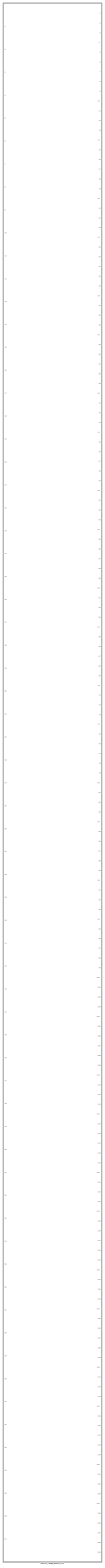
[diagram: root canvas - part 1/1, most of the canvas]
MODEL slx_ce8b786b4540
KIND library
CONFIG AbsTol = auto
CONFIG FixedStep = auto
CONFIG MaxStep = auto
CONFIG MinStep = auto
CONFIG RelTol = 1e-3
CONFIG SampleTimeConstraint = Unconstrained
CONFIG Solver = VariableStepAuto
CONFIG SolverMode = Auto
CONFIG SolverName = VariableStepAuto
CONFIG StartTime = 0.0
CONFIG StopTime = 10.0
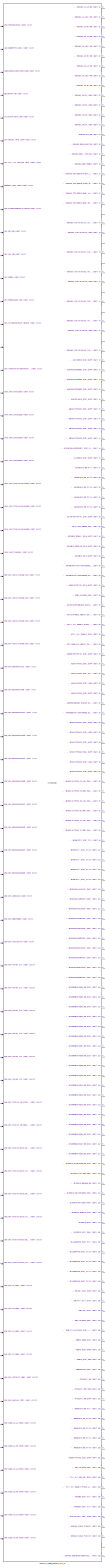
[diagram: pneAux_rebuild_generic_std - part 1/17, center side, full height]
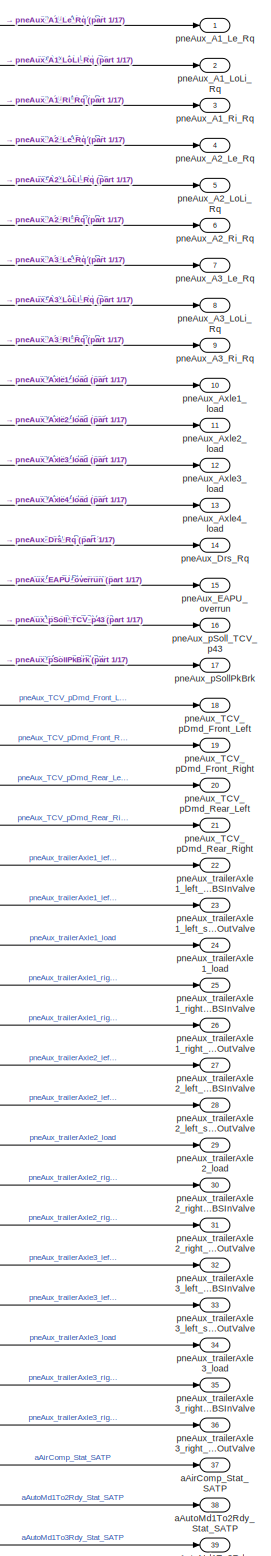
[diagram: pneAux_rebuild_generic_std - part 2/17, top right region]
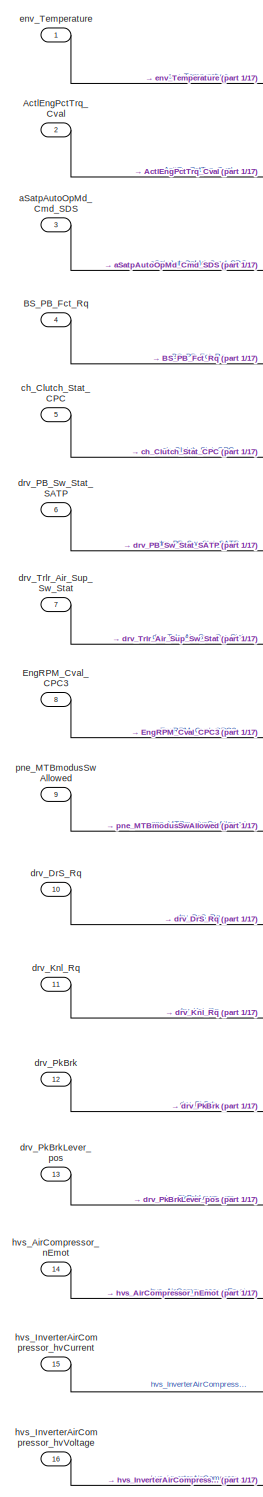
[diagram: pneAux_rebuild_generic_std - part 3/17, top left region]
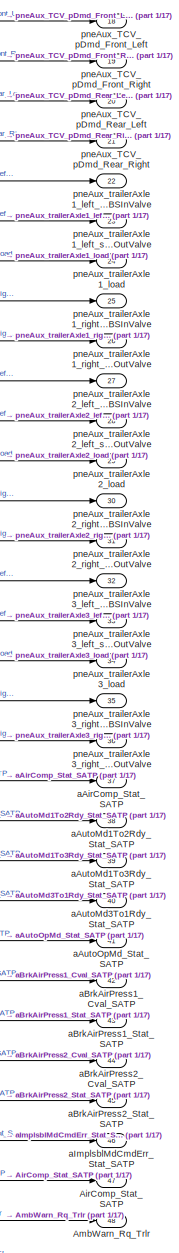
[diagram: pneAux_rebuild_generic_std - part 4/17, top right region]
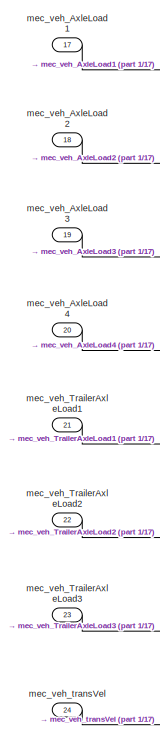
[diagram: pneAux_rebuild_generic_std - part 5/17, top left region]
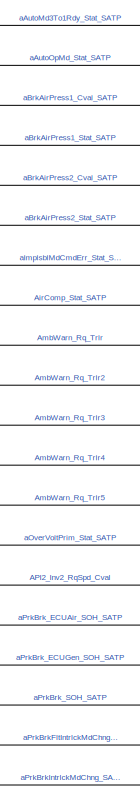
[diagram: pneAux_rebuild_generic_std - part 6/17, top right region]
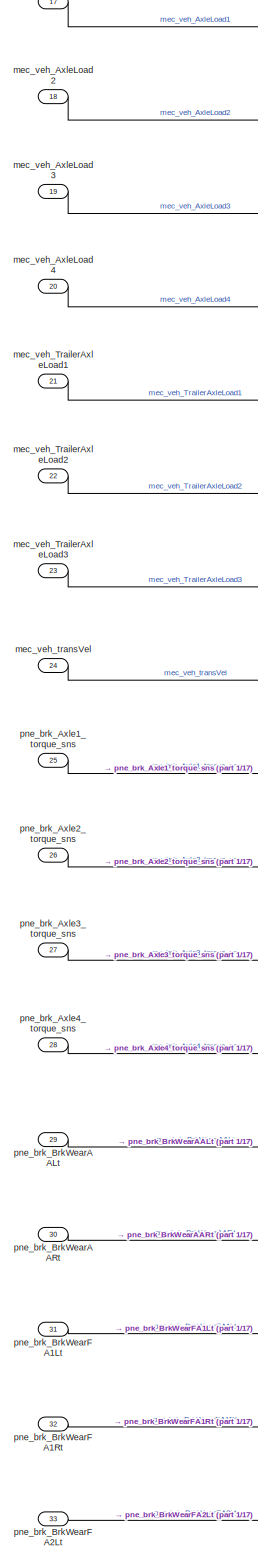
[diagram: pneAux_rebuild_generic_std - part 7/17, middle left region]
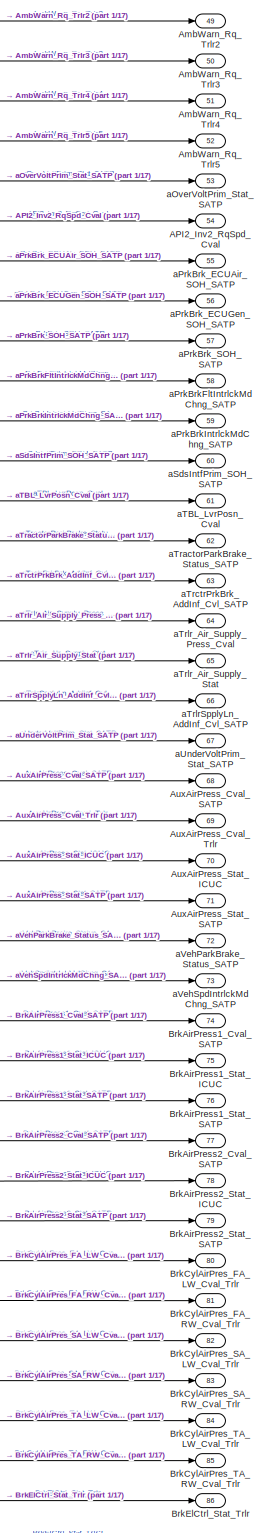
[diagram: pneAux_rebuild_generic_std - part 8/17, middle right region]
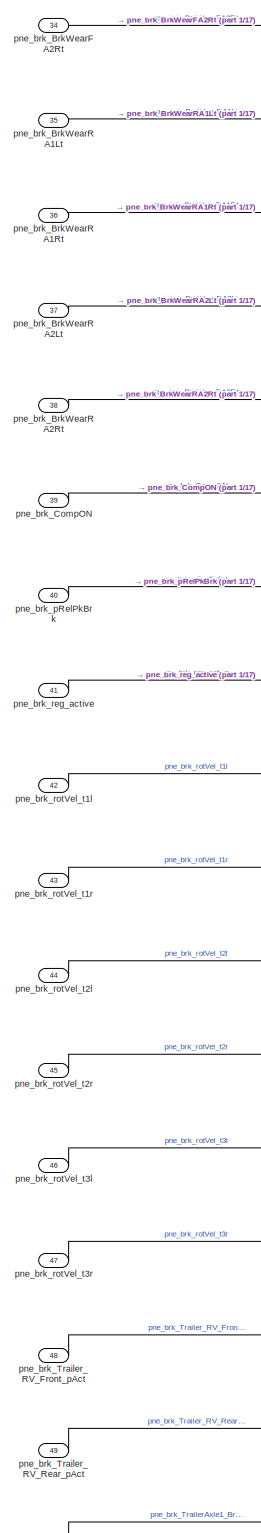
[diagram: pneAux_rebuild_generic_std - part 9/17, middle left region]
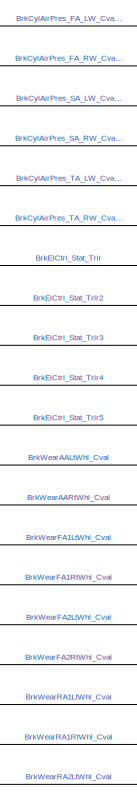
[diagram: pneAux_rebuild_generic_std - part 10/17, middle right region]
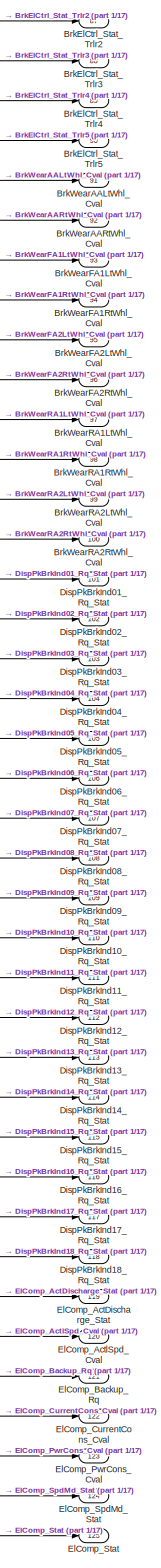
[diagram: pneAux_rebuild_generic_std - part 11/17, middle right region]
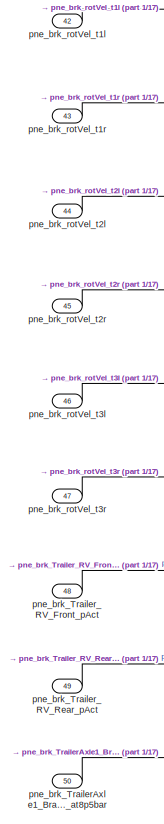
[diagram: pneAux_rebuild_generic_std - part 12/17, bottom left region]
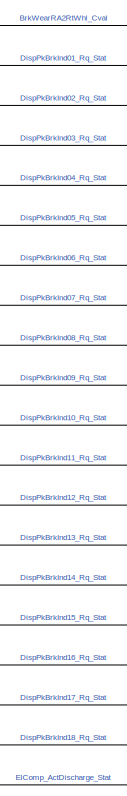
[diagram: pneAux_rebuild_generic_std - part 13/17, bottom right region]
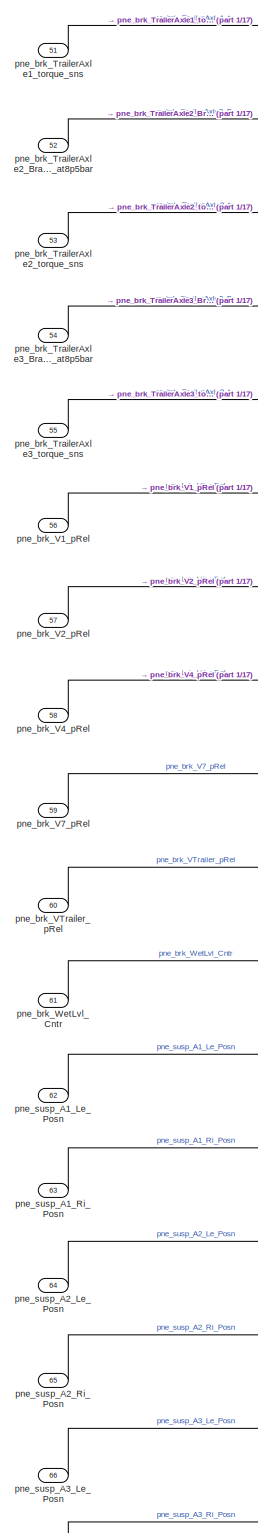
[diagram: pneAux_rebuild_generic_std - part 14/17, bottom left region]
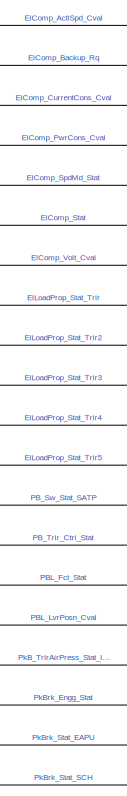
[diagram: pneAux_rebuild_generic_std - part 15/17, bottom right region]
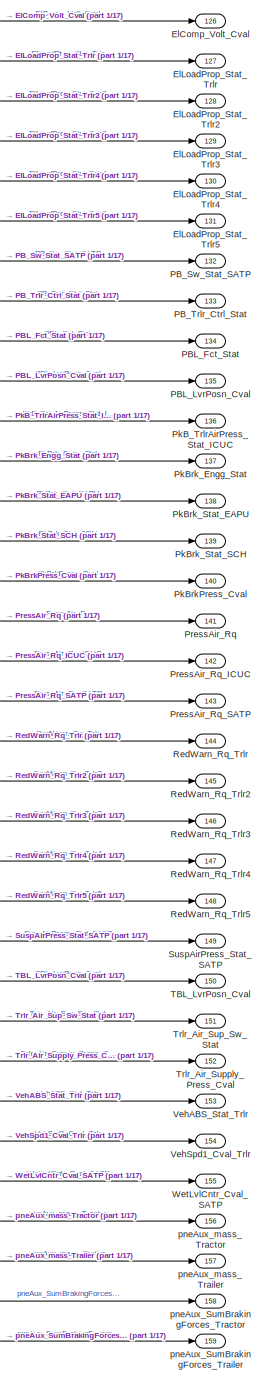
[diagram: pneAux_rebuild_generic_std - part 16/17, bottom right region]
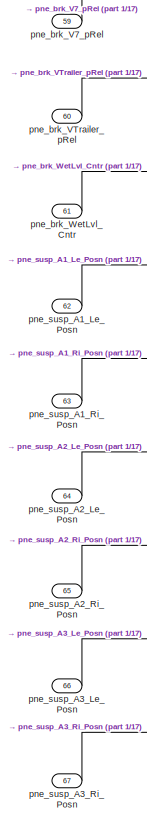
[diagram: pneAux_rebuild_generic_std - part 17/17, bottom left region]
BLOCK [SubSystem] pneAux_rebuild_generic_std
  Ports = [67, 159]
  RequestExecContextInheritance = off
  Variant = off
BLOCK [Outport] pneAux_rebuild_generic_std/API2_Inv2_RqSpd_Cval
  IconDisplay = Port number
  Port = 54
BLOCK [Inport] pneAux_rebuild_generic_std/ActlEngPctTrq_Cval
  IconDisplay = Port number
  Port = 2
BLOCK [Outport] pneAux_rebuild_generic_std/AirComp_Stat_SATP
  IconDisplay = Port number
  Port = 47
BLOCK [Outport] pneAux_rebuild_generic_std/AmbWarn_Rq_Trlr
  IconDisplay = Port number
  Port = 48
BLOCK [Outport] pneAux_rebuild_generic_std/AmbWarn_Rq_Trlr2
  IconDisplay = Port number
  Port = 49
BLOCK [Outport] pneAux_rebuild_generic_std/AmbWarn_Rq_Trlr3
  IconDisplay = Port number
  Port = 50
BLOCK [Outport] pneAux_rebuild_generic_std/AmbWarn_Rq_Trlr4
  IconDisplay = Port number
  Port = 51
BLOCK [Outport] pneAux_rebuild_generic_std/AmbWarn_Rq_Trlr5
  IconDisplay = Port number
  Port = 52
BLOCK [Outport] pneAux_rebuild_generic_std/AuxAirPress_Cval_SATP
  IconDisplay = Port number
  Port = 68
BLOCK [Outport] pneAux_rebuild_generic_std/AuxAirPress_Cval_Trlr
  IconDisplay = Port number
  Port = 69
BLOCK [Outport] pneAux_rebuild_generic_std/AuxAirPress_Stat_ICUC
  IconDisplay = Port number
  Port = 70
BLOCK [Outport] pneAux_rebuild_generic_std/AuxAirPress_Stat_SATP
  IconDisplay = Port number
  Port = 71
BLOCK [Inport] pneAux_rebuild_generic_std/BS_PB_Fct_Rq
  IconDisplay = Port number
  Port = 4
BLOCK [Outport] pneAux_rebuild_generic_std/BrkAirPress1_Cval_SATP
  IconDisplay = Port number
  Port = 74
BLOCK [Outport] pneAux_rebuild_generic_std/BrkAirPress1_Stat_ICUC
  IconDisplay = Port number
  Port = 75
BLOCK [Outport] pneAux_rebuild_generic_std/BrkAirPress1_Stat_SATP
  IconDisplay = Port number
  Port = 76
BLOCK [Outport] pneAux_rebuild_generic_std/BrkAirPress2_Cval_SATP
  IconDisplay = Port number
  Port = 77
BLOCK [Outport] pneAux_rebuild_generic_std/BrkAirPress2_Stat_ICUC
  IconDisplay = Port number
  Port = 78
BLOCK [Outport] pneAux_rebuild_generic_std/BrkAirPress2_Stat_SATP
  IconDisplay = Port number
  Port = 79
BLOCK [Outport] pneAux_rebuild_generic_std/BrkCylAirPres_FA_LW_Cval_Trlr
  IconDisplay = Port number
  Port = 80
BLOCK [Outport] pneAux_rebuild_generic_std/BrkCylAirPres_FA_RW_Cval_Trlr
  IconDisplay = Port number
  Port = 81
BLOCK [Outport] pneAux_rebuild_generic_std/BrkCylAirPres_SA_LW_Cval_Trlr
  IconDisplay = Port number
  Port = 82
BLOCK [Outport] pneAux_rebuild_generic_std/BrkCylAirPres_SA_RW_Cval_Trlr
  IconDisplay = Port number
  Port = 83
BLOCK [Outport] pneAux_rebuild_generic_std/BrkCylAirPres_TA_LW_Cval_Trlr
  IconDisplay = Port number
  Port = 84
BLOCK [Outport] pneAux_rebuild_generic_std/BrkCylAirPres_TA_RW_Cval_Trlr
  IconDisplay = Port number
  Port = 85
BLOCK [Outport] pneAux_rebuild_generic_std/BrkElCtrl_Stat_Trlr
  IconDisplay = Port number
  Port = 86
BLOCK [Outport] pneAux_rebuild_generic_std/BrkElCtrl_Stat_Trlr2
  IconDisplay = Port number
  Port = 87
BLOCK [Outport] pneAux_rebuild_generic_std/BrkElCtrl_Stat_Trlr3
  IconDisplay = Port number
  Port = 88
BLOCK [Outport] pneAux_rebuild_generic_std/BrkElCtrl_Stat_Trlr4
  IconDisplay = Port number
  Port = 89
BLOCK [Outport] pneAux_rebuild_generic_std/BrkElCtrl_Stat_Trlr5
  IconDisplay = Port number
  Port = 90
BLOCK [Outport] pneAux_rebuild_generic_std/BrkWearAALtWhl_Cval
  IconDisplay = Port number
  Port = 91
BLOCK [Outport] pneAux_rebuild_generic_std/BrkWearAARtWhl_Cval
  IconDisplay = Port number
  Port = 92
BLOCK [Outport] pneAux_rebuild_generic_std/BrkWearFA1LtWhl_Cval
  IconDisplay = Port number
  Port = 93
BLOCK [Outport] pneAux_rebuild_generic_std/BrkWearFA1RtWhl_Cval
  IconDisplay = Port number
  Port = 94
BLOCK [Outport] pneAux_rebuild_generic_std/BrkWearFA2LtWhl_Cval
  IconDisplay = Port number
  Port = 95
BLOCK [Outport] pneAux_rebuild_generic_std/BrkWearFA2RtWhl_Cval
  IconDisplay = Port number
  Port = 96
BLOCK [Outport] pneAux_rebuild_generic_std/BrkWearRA1LtWhl_Cval
  IconDisplay = Port number
  Port = 97
BLOCK [Outport] pneAux_rebuild_generic_std/BrkWearRA1RtWhl_Cval
  IconDisplay = Port number
  Port = 98
BLOCK [Outport] pneAux_rebuild_generic_std/BrkWearRA2LtWhl_Cval
  IconDisplay = Port number
  Port = 99
BLOCK [Outport] pneAux_rebuild_generic_std/BrkWearRA2RtWhl_Cval
  IconDisplay = Port number
  Port = 100
BLOCK [Outport] pneAux_rebuild_generic_std/DispPkBrkInd01_Rq_Stat
  IconDisplay = Port number
  Port = 101
BLOCK [Outport] pneAux_rebuild_generic_std/DispPkBrkInd02_Rq_Stat
  IconDisplay = Port number
  Port = 102
BLOCK [Outport] pneAux_rebuild_generic_std/DispPkBrkInd03_Rq_Stat
  IconDisplay = Port number
  Port = 103
BLOCK [Outport] pneAux_rebuild_generic_std/DispPkBrkInd04_Rq_Stat
  IconDisplay = Port number
  Port = 104
BLOCK [Outport] pneAux_rebuild_generic_std/DispPkBrkInd05_Rq_Stat
  IconDisplay = Port number
  Port = 105
BLOCK [Outport] pneAux_rebuild_generic_std/DispPkBrkInd06_Rq_Stat
  IconDisplay = Port number
  Port = 106
BLOCK [Outport] pneAux_rebuild_generic_std/DispPkBrkInd07_Rq_Stat
  IconDisplay = Port number
  Port = 107
BLOCK [Outport] pneAux_rebuild_generic_std/DispPkBrkInd08_Rq_Stat
  IconDisplay = Port number
  Port = 108
BLOCK [Outport] pneAux_rebuild_generic_std/DispPkBrkInd09_Rq_Stat
  IconDisplay = Port number
  Port = 109
BLOCK [Outport] pneAux_rebuild_generic_std/DispPkBrkInd10_Rq_Stat
  IconDisplay = Port number
  Port = 110
BLOCK [Outport] pneAux_rebuild_generic_std/DispPkBrkInd11_Rq_Stat
  IconDisplay = Port number
  Port = 111
BLOCK [Outport] pneAux_rebuild_generic_std/DispPkBrkInd12_Rq_Stat
  IconDisplay = Port number
  Port = 112
BLOCK [Outport] pneAux_rebuild_generic_std/DispPkBrkInd13_Rq_Stat
  IconDisplay = Port number
  Port = 113
BLOCK [Outport] pneAux_rebuild_generic_std/DispPkBrkInd14_Rq_Stat
  IconDisplay = Port number
  Port = 114
BLOCK [Outport] pneAux_rebuild_generic_std/DispPkBrkInd15_Rq_Stat
  IconDisplay = Port number
  Port = 115
BLOCK [Outport] pneAux_rebuild_generic_std/DispPkBrkInd16_Rq_Stat
  IconDisplay = Port number
  Port = 116
BLOCK [Outport] pneAux_rebuild_generic_std/DispPkBrkInd17_Rq_Stat
  IconDisplay = Port number
  Port = 117
BLOCK [Outport] pneAux_rebuild_generic_std/DispPkBrkInd18_Rq_Stat
  IconDisplay = Port number
  Port = 118
BLOCK [Outport] pneAux_rebuild_generic_std/ElComp_ActDischarge_Stat
  IconDisplay = Port number
  Port = 119
BLOCK [Outport] pneAux_rebuild_generic_std/ElComp_ActlSpd_Cval
  IconDisplay = Port number
  Port = 120
BLOCK [Outport] pneAux_rebuild_generic_std/ElComp_Backup_Rq
  IconDisplay = Port number
  Port = 121
BLOCK [Outport] pneAux_rebuild_generic_std/ElComp_CurrentCons_Cval
  IconDisplay = Port number
  Port = 122
BLOCK [Outport] pneAux_rebuild_generic_std/ElComp_PwrCons_Cval
  IconDisplay = Port number
  Port = 123
BLOCK [Outport] pneAux_rebuild_generic_std/ElComp_SpdMd_Stat
  IconDisplay = Port number
  Port = 124
BLOCK [Outport] pneAux_rebuild_generic_std/ElComp_Stat
  IconDisplay = Port number
  Port = 125
BLOCK [Outport] pneAux_rebuild_generic_std/ElComp_Volt_Cval
  IconDisplay = Port number
  Port = 126
BLOCK [Outport] pneAux_rebuild_generic_std/ElLoadProp_Stat_Trlr
  IconDisplay = Port number
  Port = 127
BLOCK [Outport] pneAux_rebuild_generic_std/ElLoadProp_Stat_Trlr2
  IconDisplay = Port number
  Port = 128
BLOCK [Outport] pneAux_rebuild_generic_std/ElLoadProp_Stat_Trlr3
  IconDisplay = Port number
  Port = 129
BLOCK [Outport] pneAux_rebuild_generic_std/ElLoadProp_Stat_Trlr4
  IconDisplay = Port number
  Port = 130
BLOCK [Outport] pneAux_rebuild_generic_std/ElLoadProp_Stat_Trlr5
  IconDisplay = Port number
  Port = 131
BLOCK [Inport] pneAux_rebuild_generic_std/EngRPM_Cval_CPC3
  IconDisplay = Port number
  Port = 8
BLOCK [Outport] pneAux_rebuild_generic_std/PBL_Fct_Stat
  IconDisplay = Port number
  Port = 134
BLOCK [Outport] pneAux_rebuild_generic_std/PBL_LvrPosn_Cval
  IconDisplay = Port number
  Port = 135
BLOCK [Outport] pneAux_rebuild_generic_std/PB_Sw_Stat_SATP
  IconDisplay = Port number
  Port = 132
BLOCK [Outport] pneAux_rebuild_generic_std/PB_Trlr_Ctrl_Stat
  IconDisplay = Port number
  Port = 133
BLOCK [Outport] pneAux_rebuild_generic_std/PkB_TrlrAirPress_Stat_ICUC
  IconDisplay = Port number
  Port = 136
BLOCK [Outport] pneAux_rebuild_generic_std/PkBrkPress_Cval
  IconDisplay = Port number
  Port = 140
BLOCK [Outport] pneAux_rebuild_generic_std/PkBrk_Engg_Stat
  IconDisplay = Port number
  Port = 137
BLOCK [Outport] pneAux_rebuild_generic_std/PkBrk_Stat_EAPU
  IconDisplay = Port number
  Port = 138
BLOCK [Outport] pneAux_rebuild_generic_std/PkBrk_Stat_SCH
  IconDisplay = Port number
  Port = 139
BLOCK [Outport] pneAux_rebuild_generic_std/PressAir_Rq
  IconDisplay = Port number
  Port = 141
BLOCK [Outport] pneAux_rebuild_generic_std/PressAir_Rq_ICUC
  IconDisplay = Port number
  Port = 142
BLOCK [Outport] pneAux_rebuild_generic_std/PressAir_Rq_SATP
  IconDisplay = Port number
  Port = 143
BLOCK [Outport] pneAux_rebuild_generic_std/RedWarn_Rq_Trlr
  IconDisplay = Port number
  Port = 144
BLOCK [Outport] pneAux_rebuild_generic_std/RedWarn_Rq_Trlr2
  IconDisplay = Port number
  Port = 145
BLOCK [Outport] pneAux_rebuild_generic_std/RedWarn_Rq_Trlr3
  IconDisplay = Port number
  Port = 146
BLOCK [Outport] pneAux_rebuild_generic_std/RedWarn_Rq_Trlr4
  IconDisplay = Port number
  Port = 147
BLOCK [Outport] pneAux_rebuild_generic_std/RedWarn_Rq_Trlr5
  IconDisplay = Port number
  Port = 148
BLOCK [Outport] pneAux_rebuild_generic_std/SuspAirPress_Stat_SATP
  IconDisplay = Port number
  Port = 149
BLOCK [Outport] pneAux_rebuild_generic_std/TBL_LvrPosn_Cval
  IconDisplay = Port number
  Port = 150
BLOCK [Outport] pneAux_rebuild_generic_std/Trlr_Air_Sup_Sw_Stat
  IconDisplay = Port number
  Port = 151
BLOCK [Outport] pneAux_rebuild_generic_std/Trlr_Air_Supply_Press_Cval
  IconDisplay = Port number
  Port = 152
BLOCK [Outport] pneAux_rebuild_generic_std/VehABS_Stat_Trlr
  IconDisplay = Port number
  Port = 153
BLOCK [Outport] pneAux_rebuild_generic_std/VehSpd1_Cval_Trlr
  IconDisplay = Port number
  Port = 154
BLOCK [Outport] pneAux_rebuild_generic_std/WetLvlCntr_Cval_SATP
  IconDisplay = Port number
  Port = 155
BLOCK [Outport] pneAux_rebuild_generic_std/aAirComp_Stat_SATP
  IconDisplay = Port number
  Port = 37
BLOCK [Outport] pneAux_rebuild_generic_std/aAutoMd1To2Rdy_Stat_SATP
  IconDisplay = Port number
  Port = 38
BLOCK [Outport] pneAux_rebuild_generic_std/aAutoMd1To3Rdy_Stat_SATP
  IconDisplay = Port number
  Port = 39
BLOCK [Outport] pneAux_rebuild_generic_std/aAutoMd3To1Rdy_Stat_SATP
  IconDisplay = Port number
  Port = 40
BLOCK [Outport] pneAux_rebuild_generic_std/aAutoOpMd_Stat_SATP
  IconDisplay = Port number
  Port = 41
BLOCK [Outport] pneAux_rebuild_generic_std/aBrkAirPress1_Cval_SATP
  IconDisplay = Port number
  Port = 42
BLOCK [Outport] pneAux_rebuild_generic_std/aBrkAirPress1_Stat_SATP
  IconDisplay = Port number
  Port = 43
BLOCK [Outport] pneAux_rebuild_generic_std/aBrkAirPress2_Cval_SATP
  IconDisplay = Port number
  Port = 44
BLOCK [Outport] pneAux_rebuild_generic_std/aBrkAirPress2_Stat_SATP
  IconDisplay = Port number
  Port = 45
BLOCK [Outport] pneAux_rebuild_generic_std/aImplsblMdCmdErr_Stat_SATP
  IconDisplay = Port number
  Port = 46
BLOCK [Outport] pneAux_rebuild_generic_std/aOverVoltPrim_Stat_SATP
  IconDisplay = Port number
  Port = 53
BLOCK [Outport] pneAux_rebuild_generic_std/aPrkBrkFltIntrlckMdChng_SATP
  IconDisplay = Port number
  Port = 58
BLOCK [Outport] pneAux_rebuild_generic_std/aPrkBrkIntrlckMdChng_SATP
  IconDisplay = Port number
  Port = 59
BLOCK [Outport] pneAux_rebuild_generic_std/aPrkBrk_ECUAir_SOH_SATP
  IconDisplay = Port number
  Port = 55
BLOCK [Outport] pneAux_rebuild_generic_std/aPrkBrk_ECUGen_SOH_SATP
  IconDisplay = Port number
  Port = 56
BLOCK [Outport] pneAux_rebuild_generic_std/aPrkBrk_SOH_SATP
  IconDisplay = Port number
  Port = 57
BLOCK [Inport] pneAux_rebuild_generic_std/aSatpAutoOpMd_Cmd_SDS
  IconDisplay = Port number
  Port = 3
BLOCK [Outport] pneAux_rebuild_generic_std/aSdsIntfPrim_SOH_SATP
  IconDisplay = Port number
  Port = 60
BLOCK [Outport] pneAux_rebuild_generic_std/aTBL_LvrPosn_Cval
  IconDisplay = Port number
  Port = 61
BLOCK [Outport] pneAux_rebuild_generic_std/aTractorParkBrake_Status_SATP
  IconDisplay = Port number
  Port = 62
BLOCK [Outport] pneAux_rebuild_generic_std/aTrctrPrkBrk_AddInf_Cvl_SATP
  IconDisplay = Port number
  Port = 63
BLOCK [Outport] pneAux_rebuild_generic_std/aTrlrSpplyLn_AddInf_Cvl_SATP
  IconDisplay = Port number
  Port = 66
BLOCK [Outport] pneAux_rebuild_generic_std/aTrlr_Air_Supply_Press_Cval
  IconDisplay = Port number
  Port = 64
BLOCK [Outport] pneAux_rebuild_generic_std/aTrlr_Air_Supply_Stat
  IconDisplay = Port number
  Port = 65
BLOCK [Outport] pneAux_rebuild_generic_std/aUnderVoltPrim_Stat_SATP
  IconDisplay = Port number
  Port = 67
BLOCK [Outport] pneAux_rebuild_generic_std/aVehParkBrake_Status_SATP
  IconDisplay = Port number
  Port = 72
BLOCK [Outport] pneAux_rebuild_generic_std/aVehSpdIntrlckMdChng_SATP
  IconDisplay = Port number
  Port = 73
BLOCK [Inport] pneAux_rebuild_generic_std/ch_Clutch_Stat_CPC
  IconDisplay = Port number
  Port = 5
BLOCK [Inport] pneAux_rebuild_generic_std/drv_DrS_Rq
  IconDisplay = Port number
  Port = 10
BLOCK [Inport] pneAux_rebuild_generic_std/drv_Knl_Rq
  IconDisplay = Port number
  Port = 11
BLOCK [Inport] pneAux_rebuild_generic_std/drv_PB_Sw_Stat_SATP
  IconDisplay = Port number
  Port = 6
BLOCK [Inport] pneAux_rebuild_generic_std/drv_PkBrk
  IconDisplay = Port number
  Port = 12
BLOCK [Inport] pneAux_rebuild_generic_std/drv_PkBrkLever_pos
  IconDisplay = Port number
  Port = 13
BLOCK [Inport] pneAux_rebuild_generic_std/drv_Trlr_Air_Sup_Sw_Stat
  IconDisplay = Port number
  Port = 7
BLOCK [Inport] pneAux_rebuild_generic_std/env_Temperature
  IconDisplay = Port number
BLOCK [Inport] pneAux_rebuild_generic_std/hvs_AirCompressor_nEmot
  IconDisplay = Port number
  Port = 14
BLOCK [Inport] pneAux_rebuild_generic_std/hvs_InverterAirCompressor_hvCurrent
  IconDisplay = Port number
  Port = 15
BLOCK [Inport] pneAux_rebuild_generic_std/hvs_InverterAirCompressor_hvVoltage
  IconDisplay = Port number
  Port = 16
BLOCK [Inport] pneAux_rebuild_generic_std/mec_veh_AxleLoad1
  IconDisplay = Port number
  Port = 17
BLOCK [Inport] pneAux_rebuild_generic_std/mec_veh_AxleLoad2
  IconDisplay = Port number
  Port = 18
BLOCK [Inport] pneAux_rebuild_generic_std/mec_veh_AxleLoad3
  IconDisplay = Port number
  Port = 19
BLOCK [Inport] pneAux_rebuild_generic_std/mec_veh_AxleLoad4
  IconDisplay = Port number
  Port = 20
BLOCK [Inport] pneAux_rebuild_generic_std/mec_veh_TrailerAxleLoad1
  IconDisplay = Port number
  Port = 21
BLOCK [Inport] pneAux_rebuild_generic_std/mec_veh_TrailerAxleLoad2
  IconDisplay = Port number
  Port = 22
BLOCK [Inport] pneAux_rebuild_generic_std/mec_veh_TrailerAxleLoad3
  IconDisplay = Port number
  Port = 23
BLOCK [Inport] pneAux_rebuild_generic_std/mec_veh_transVel
  IconDisplay = Port number
  Port = 24
BLOCK [Outport] pneAux_rebuild_generic_std/pneAux_A1_Le_Rq
  IconDisplay = Port number
BLOCK [Outport] pneAux_rebuild_generic_std/pneAux_A1_LoLi_Rq
  IconDisplay = Port number
  Port = 2
BLOCK [Outport] pneAux_rebuild_generic_std/pneAux_A1_Ri_Rq
  IconDisplay = Port number
  Port = 3
BLOCK [Outport] pneAux_rebuild_generic_std/pneAux_A2_Le_Rq
  IconDisplay = Port number
  Port = 4
BLOCK [Outport] pneAux_rebuild_generic_std/pneAux_A2_LoLi_Rq
  IconDisplay = Port number
  Port = 5
BLOCK [Outport] pneAux_rebuild_generic_std/pneAux_A2_Ri_Rq
  IconDisplay = Port number
  Port = 6
BLOCK [Outport] pneAux_rebuild_generic_std/pneAux_A3_Le_Rq
  IconDisplay = Port number
  Port = 7
BLOCK [Outport] pneAux_rebuild_generic_std/pneAux_A3_LoLi_Rq
  IconDisplay = Port number
  Port = 8
BLOCK [Outport] pneAux_rebuild_generic_std/pneAux_A3_Ri_Rq
  IconDisplay = Port number
  Port = 9
BLOCK [Outport] pneAux_rebuild_generic_std/pneAux_Axle1_load
  IconDisplay = Port number
  Port = 10
BLOCK [Outport] pneAux_rebuild_generic_std/pneAux_Axle2_load
  IconDisplay = Port number
  Port = 11
BLOCK [Outport] pneAux_rebuild_generic_std/pneAux_Axle3_load
  IconDisplay = Port number
  Port = 12
BLOCK [Outport] pneAux_rebuild_generic_std/pneAux_Axle4_load
  IconDisplay = Port number
  Port = 13
BLOCK [Outport] pneAux_rebuild_generic_std/pneAux_Drs_Rq
  IconDisplay = Port number
  Port = 14
BLOCK [Outport] pneAux_rebuild_generic_std/pneAux_EAPU_overrun
  IconDisplay = Port number
  Port = 15
BLOCK [Outport] pneAux_rebuild_generic_std/pneAux_SumBrakingForces_Tractor
  IconDisplay = Port number
  Port = 158
BLOCK [Outport] pneAux_rebuild_generic_std/pneAux_SumBrakingForces_Trailer
  IconDisplay = Port number
  Port = 159
BLOCK [Outport] pneAux_rebuild_generic_std/pneAux_TCV_pDmd_Front_Left
  IconDisplay = Port number
  Port = 18
BLOCK [Outport] pneAux_rebuild_generic_std/pneAux_TCV_pDmd_Front_Right
  IconDisplay = Port number
  Port = 19
BLOCK [Outport] pneAux_rebuild_generic_std/pneAux_TCV_pDmd_Rear_Left
  IconDisplay = Port number
  Port = 20
BLOCK [Outport] pneAux_rebuild_generic_std/pneAux_TCV_pDmd_Rear_Right
  IconDisplay = Port number
  Port = 21
BLOCK [Outport] pneAux_rebuild_generic_std/pneAux_mass_Tractor
  IconDisplay = Port number
  Port = 156
BLOCK [Outport] pneAux_rebuild_generic_std/pneAux_mass_Trailer
  IconDisplay = Port number
  Port = 157
BLOCK [Outport] pneAux_rebuild_generic_std/pneAux_pSollPkBrk
  IconDisplay = Port number
  Port = 17
BLOCK [Outport] pneAux_rebuild_generic_std/pneAux_pSoll_TCV_p43
  IconDisplay = Port number
  Port = 16
BLOCK [S-Function] pneAux_rebuild_generic_std/pneAux_rebuild_generic_std_sf
  EnableBusSupport = off
  FunctionName = pneAux_rebuild_generic_std_sf
  Parameters = s1 s2 p1 p2 p3 p4 p5 p6 p7 p8 p9 p10 p11 p12 p13 p14 p15 p16 p17 p18 p19 p20 p21 p22 p23 p24 p25 p26 p27 p28 p29 p30 p31 p32 p33 p34 p35 p36 p37 p38 p39 p40 p41 p42 p43 p44 p45 p46 p47 p48 p49 p50 p51 p52 p53 p54 p55 p56 p57 p58 p59 p60 p61 p62 p63 p64 p65 p66 p67 p68 p69 p70 p71 p72 p73 p74 p75 p76 p77 p78 p79 p80 p81 p82 p83 p84 p85 p86 p87 p88 p89 p90 p91 p92 p93 p94 p95 p96 p97 p98 p99 p100 p1...<+782ch>
  Ports = [67, 159]
  SFunctionDeploymentMode = off
  SFunctionModules = pneAux_rebuild_generic_std_sf_decl pneAux_rebuild_generic_std_sf_functions pneAux_rebuild_generic_std_sf_init pneAux_rebuild_generic_std_sf_initjac pneAux_rebuild_generic_std_sf_jac ITI_ArrayFunctions ITI_big_uint ITI_FixStep_pneAux_rebuild_generic_std_sf ITI_Functions ITI_LinSolver ITI_Memory ITI_NonLinSolver_pneAux_rebuild_generic_std_sf ITI_SFuncFixStepSolver_pneAux_rebuild_generic_std_sf ITI_S...<+126ch>
BLOCK [Outport] pneAux_rebuild_generic_std/pneAux_trailerAxle1_left_stABSInValve
  IconDisplay = Port number
  Port = 22
BLOCK [Outport] pneAux_rebuild_generic_std/pneAux_trailerAxle1_left_stABSOutValve
  IconDisplay = Port number
  Port = 23
BLOCK [Outport] pneAux_rebuild_generic_std/pneAux_trailerAxle1_load
  IconDisplay = Port number
  Port = 24
BLOCK [Outport] pneAux_rebuild_generic_std/pneAux_trailerAxle1_right_stABSInValve
  IconDisplay = Port number
  Port = 25
BLOCK [Outport] pneAux_rebuild_generic_std/pneAux_trailerAxle1_right_stABSOutValve
  IconDisplay = Port number
  Port = 26
BLOCK [Outport] pneAux_rebuild_generic_std/pneAux_trailerAxle2_left_stABSInValve
  IconDisplay = Port number
  Port = 27
BLOCK [Outport] pneAux_rebuild_generic_std/pneAux_trailerAxle2_left_stABSOutValve
  IconDisplay = Port number
  Port = 28
BLOCK [Outport] pneAux_rebuild_generic_std/pneAux_trailerAxle2_load
  IconDisplay = Port number
  Port = 29
BLOCK [Outport] pneAux_rebuild_generic_std/pneAux_trailerAxle2_right_stABSInValve
  IconDisplay = Port number
  Port = 30
BLOCK [Outport] pneAux_rebuild_generic_std/pneAux_trailerAxle2_right_stABSOutValve
  IconDisplay = Port number
  Port = 31
BLOCK [Outport] pneAux_rebuild_generic_std/pneAux_trailerAxle3_left_stABSInValve
  IconDisplay = Port number
  Port = 32
BLOCK [Outport] pneAux_rebuild_generic_std/pneAux_trailerAxle3_left_stABSOutValve
  IconDisplay = Port number
  Port = 33
BLOCK [Outport] pneAux_rebuild_generic_std/pneAux_trailerAxle3_load
  IconDisplay = Port number
  Port = 34
BLOCK [Outport] pneAux_rebuild_generic_std/pneAux_trailerAxle3_right_stABSInValve
  IconDisplay = Port number
  Port = 35
BLOCK [Outport] pneAux_rebuild_generic_std/pneAux_trailerAxle3_right_stABSOutValve
  IconDisplay = Port number
  Port = 36
BLOCK [Inport] pneAux_rebuild_generic_std/pne_MTBmodusSwAllowed
  IconDisplay = Port number
  Port = 9
BLOCK [Inport] pneAux_rebuild_generic_std/pne_brk_Axle1_torque_sns
  IconDisplay = Port number
  Port = 25
BLOCK [Inport] pneAux_rebuild_generic_std/pne_brk_Axle2_torque_sns
  IconDisplay = Port number
  Port = 26
BLOCK [Inport] pneAux_rebuild_generic_std/pne_brk_Axle3_torque_sns
  IconDisplay = Port number
  Port = 27
BLOCK [Inport] pneAux_rebuild_generic_std/pne_brk_Axle4_torque_sns
  IconDisplay = Port number
  Port = 28
BLOCK [Inport] pneAux_rebuild_generic_std/pne_brk_BrkWearAALt
  IconDisplay = Port number
  Port = 29
BLOCK [Inport] pneAux_rebuild_generic_std/pne_brk_BrkWearAARt
  IconDisplay = Port number
  Port = 30
BLOCK [Inport] pneAux_rebuild_generic_std/pne_brk_BrkWearFA1Lt
  IconDisplay = Port number
  Port = 31
BLOCK [Inport] pneAux_rebuild_generic_std/pne_brk_BrkWearFA1Rt
  IconDisplay = Port number
  Port = 32
BLOCK [Inport] pneAux_rebuild_generic_std/pne_brk_BrkWearFA2Lt
  IconDisplay = Port number
  Port = 33
BLOCK [Inport] pneAux_rebuild_generic_std/pne_brk_BrkWearFA2Rt
  IconDisplay = Port number
  Port = 34
BLOCK [Inport] pneAux_rebuild_generic_std/pne_brk_BrkWearRA1Lt
  IconDisplay = Port number
  Port = 35
BLOCK [Inport] pneAux_rebuild_generic_std/pne_brk_BrkWearRA1Rt
  IconDisplay = Port number
  Port = 36
BLOCK [Inport] pneAux_rebuild_generic_std/pne_brk_BrkWearRA2Lt
  IconDisplay = Port number
  Port = 37
BLOCK [Inport] pneAux_rebuild_generic_std/pne_brk_BrkWearRA2Rt
  IconDisplay = Port number
  Port = 38
BLOCK [Inport] pneAux_rebuild_generic_std/pne_brk_CompON
  IconDisplay = Port number
  Port = 39
BLOCK [Inport] pneAux_rebuild_generic_std/pne_brk_TrailerAxle1_BrakingForce_at8p5bar
  IconDisplay = Port number
  Port = 50
BLOCK [Inport] pneAux_rebuild_generic_std/pne_brk_TrailerAxle1_torque_sns
  IconDisplay = Port number
  Port = 51
BLOCK [Inport] pneAux_rebuild_generic_std/pne_brk_TrailerAxle2_BrakingForce_at8p5bar
  IconDisplay = Port number
  Port = 52
BLOCK [Inport] pneAux_rebuild_generic_std/pne_brk_TrailerAxle2_torque_sns
  IconDisplay = Port number
  Port = 53
BLOCK [Inport] pneAux_rebuild_generic_std/pne_brk_TrailerAxle3_BrakingForce_at8p5bar
  IconDisplay = Port number
  Port = 54
BLOCK [Inport] pneAux_rebuild_generic_std/pne_brk_TrailerAxle3_torque_sns
  IconDisplay = Port number
  Port = 55
BLOCK [Inport] pneAux_rebuild_generic_std/pne_brk_Trailer_RV_Front_pAct
  IconDisplay = Port number
  Port = 48
BLOCK [Inport] pneAux_rebuild_generic_std/pne_brk_Trailer_RV_Rear_pAct
  IconDisplay = Port number
  Port = 49
BLOCK [Inport] pneAux_rebuild_generic_std/pne_brk_V1_pRel
  IconDisplay = Port number
  Port = 56
BLOCK [Inport] pneAux_rebuild_generic_std/pne_brk_V2_pRel
  IconDisplay = Port number
  Port = 57
BLOCK [Inport] pneAux_rebuild_generic_std/pne_brk_V4_pRel
  IconDisplay = Port number
  Port = 58
BLOCK [Inport] pneAux_rebuild_generic_std/pne_brk_V7_pRel
  IconDisplay = Port number
  Port = 59
BLOCK [Inport] pneAux_rebuild_generic_std/pne_brk_VTrailer_pRel
  IconDisplay = Port number
  Port = 60
BLOCK [Inport] pneAux_rebuild_generic_std/pne_brk_WetLvl_Cntr
  IconDisplay = Port number
  Port = 61
BLOCK [Inport] pneAux_rebuild_generic_std/pne_brk_pRelPkBrk
  IconDisplay = Port number
  Port = 40
BLOCK [Inport] pneAux_rebuild_generic_std/pne_brk_reg_active
  IconDisplay = Port number
  Port = 41
BLOCK [Inport] pneAux_rebuild_generic_std/pne_brk_rotVel_t1l
  IconDisplay = Port number
  Port = 42
BLOCK [Inport] pneAux_rebuild_generic_std/pne_brk_rotVel_t1r
  IconDisplay = Port number
  Port = 43
BLOCK [Inport] pneAux_rebuild_generic_std/pne_brk_rotVel_t2l
  IconDisplay = Port number
  Port = 44
BLOCK [Inport] pneAux_rebuild_generic_std/pne_brk_rotVel_t2r
  IconDisplay = Port number
  Port = 45
BLOCK [Inport] pneAux_rebuild_generic_std/pne_brk_rotVel_t3l
  IconDisplay = Port number
  Port = 46
BLOCK [Inport] pneAux_rebuild_generic_std/pne_brk_rotVel_t3r
  IconDisplay = Port number
  Port = 47
BLOCK [Inport] pneAux_rebuild_generic_std/pne_susp_A1_Le_Posn
  IconDisplay = Port number
  Port = 62
BLOCK [Inport] pneAux_rebuild_generic_std/pne_susp_A1_Ri_Posn
  IconDisplay = Port number
  Port = 63
BLOCK [Inport] pneAux_rebuild_generic_std/pne_susp_A2_Le_Posn
  IconDisplay = Port number
  Port = 64
BLOCK [Inport] pneAux_rebuild_generic_std/pne_susp_A2_Ri_Posn
  IconDisplay = Port number
  Port = 65
BLOCK [Inport] pneAux_rebuild_generic_std/pne_susp_A3_Le_Posn
  IconDisplay = Port number
  Port = 66
BLOCK [Inport] pneAux_rebuild_generic_std/pne_susp_A3_Ri_Posn
  IconDisplay = Port number
  Port = 67
LINE pneAux_rebuild_generic_std/ActlEngPctTrq_Cval:1 -> pneAux_rebuild_generic_std/pneAux_rebuild_generic_std_sf:2
LINE pneAux_rebuild_generic_std/BS_PB_Fct_Rq:1 -> pneAux_rebuild_generic_std/pneAux_rebuild_generic_std_sf:4
LINE pneAux_rebuild_generic_std/EngRPM_Cval_CPC3:1 -> pneAux_rebuild_generic_std/pneAux_rebuild_generic_std_sf:8
LINE pneAux_rebuild_generic_std/aSatpAutoOpMd_Cmd_SDS:1 -> pneAux_rebuild_generic_std/pneAux_rebuild_generic_std_sf:3
LINE pneAux_rebuild_generic_std/ch_Clutch_Stat_CPC:1 -> pneAux_rebuild_generic_std/pneAux_rebuild_generic_std_sf:5
LINE pneAux_rebuild_generic_std/drv_DrS_Rq:1 -> pneAux_rebuild_generic_std/pneAux_rebuild_generic_std_sf:10
LINE pneAux_rebuild_generic_std/drv_Knl_Rq:1 -> pneAux_rebuild_generic_std/pneAux_rebuild_generic_std_sf:11
LINE pneAux_rebuild_generic_std/drv_PB_Sw_Stat_SATP:1 -> pneAux_rebuild_generic_std/pneAux_rebuild_generic_std_sf:6
LINE pneAux_rebuild_generic_std/drv_PkBrk:1 -> pneAux_rebuild_generic_std/pneAux_rebuild_generic_std_sf:12
LINE pneAux_rebuild_generic_std/drv_PkBrkLever_pos:1 -> pneAux_rebuild_generic_std/pneAux_rebuild_generic_std_sf:13
LINE pneAux_rebuild_generic_std/drv_Trlr_Air_Sup_Sw_Stat:1 -> pneAux_rebuild_generic_std/pneAux_rebuild_generic_std_sf:7
LINE pneAux_rebuild_generic_std/env_Temperature:1 -> pneAux_rebuild_generic_std/pneAux_rebuild_generic_std_sf:1
LINE pneAux_rebuild_generic_std/hvs_AirCompressor_nEmot:1 -> pneAux_rebuild_generic_std/pneAux_rebuild_generic_std_sf:14
LINE pneAux_rebuild_generic_std/hvs_InverterAirCompressor_hvCurrent:1 -> pneAux_rebuild_generic_std/pneAux_rebuild_generic_std_sf:15
LINE pneAux_rebuild_generic_std/hvs_InverterAirCompressor_hvVoltage:1 -> pneAux_rebuild_generic_std/pneAux_rebuild_generic_std_sf:16
LINE pneAux_rebuild_generic_std/mec_veh_AxleLoad1:1 -> pneAux_rebuild_generic_std/pneAux_rebuild_generic_std_sf:17
LINE pneAux_rebuild_generic_std/mec_veh_AxleLoad2:1 -> pneAux_rebuild_generic_std/pneAux_rebuild_generic_std_sf:18
LINE pneAux_rebuild_generic_std/mec_veh_AxleLoad3:1 -> pneAux_rebuild_generic_std/pneAux_rebuild_generic_std_sf:19
LINE pneAux_rebuild_generic_std/mec_veh_AxleLoad4:1 -> pneAux_rebuild_generic_std/pneAux_rebuild_generic_std_sf:20
LINE pneAux_rebuild_generic_std/mec_veh_TrailerAxleLoad1:1 -> pneAux_rebuild_generic_std/pneAux_rebuild_generic_std_sf:21
LINE pneAux_rebuild_generic_std/mec_veh_TrailerAxleLoad2:1 -> pneAux_rebuild_generic_std/pneAux_rebuild_generic_std_sf:22
LINE pneAux_rebuild_generic_std/mec_veh_TrailerAxleLoad3:1 -> pneAux_rebuild_generic_std/pneAux_rebuild_generic_std_sf:23
LINE pneAux_rebuild_generic_std/mec_veh_transVel:1 -> pneAux_rebuild_generic_std/pneAux_rebuild_generic_std_sf:24
LINE pneAux_rebuild_generic_std/pneAux_rebuild_generic_std_sf:1 -> pneAux_rebuild_generic_std/pneAux_A1_Le_Rq:1
LINE pneAux_rebuild_generic_std/pneAux_rebuild_generic_std_sf:10 -> pneAux_rebuild_generic_std/pneAux_Axle1_load:1
LINE pneAux_rebuild_generic_std/pneAux_rebuild_generic_std_sf:100 -> pneAux_rebuild_generic_std/BrkWearRA2RtWhl_Cval:1
LINE pneAux_rebuild_generic_std/pneAux_rebuild_generic_std_sf:101 -> pneAux_rebuild_generic_std/DispPkBrkInd01_Rq_Stat:1
LINE pneAux_rebuild_generic_std/pneAux_rebuild_generic_std_sf:102 -> pneAux_rebuild_generic_std/DispPkBrkInd02_Rq_Stat:1
LINE pneAux_rebuild_generic_std/pneAux_rebuild_generic_std_sf:103 -> pneAux_rebuild_generic_std/DispPkBrkInd03_Rq_Stat:1
LINE pneAux_rebuild_generic_std/pneAux_rebuild_generic_std_sf:104 -> pneAux_rebuild_generic_std/DispPkBrkInd04_Rq_Stat:1
LINE pneAux_rebuild_generic_std/pneAux_rebuild_generic_std_sf:105 -> pneAux_rebuild_generic_std/DispPkBrkInd05_Rq_Stat:1
LINE pneAux_rebuild_generic_std/pneAux_rebuild_generic_std_sf:106 -> pneAux_rebuild_generic_std/DispPkBrkInd06_Rq_Stat:1
LINE pneAux_rebuild_generic_std/pneAux_rebuild_generic_std_sf:107 -> pneAux_rebuild_generic_std/DispPkBrkInd07_Rq_Stat:1
LINE pneAux_rebuild_generic_std/pneAux_rebuild_generic_std_sf:108 -> pneAux_rebuild_generic_std/DispPkBrkInd08_Rq_Stat:1
LINE pneAux_rebuild_generic_std/pneAux_rebuild_generic_std_sf:109 -> pneAux_rebuild_generic_std/DispPkBrkInd09_Rq_Stat:1
LINE pneAux_rebuild_generic_std/pneAux_rebuild_generic_std_sf:11 -> pneAux_rebuild_generic_std/pneAux_Axle2_load:1
LINE pneAux_rebuild_generic_std/pneAux_rebuild_generic_std_sf:110 -> pneAux_rebuild_generic_std/DispPkBrkInd10_Rq_Stat:1
LINE pneAux_rebuild_generic_std/pneAux_rebuild_generic_std_sf:111 -> pneAux_rebuild_generic_std/DispPkBrkInd11_Rq_Stat:1
LINE pneAux_rebuild_generic_std/pneAux_rebuild_generic_std_sf:112 -> pneAux_rebuild_generic_std/DispPkBrkInd12_Rq_Stat:1
LINE pneAux_rebuild_generic_std/pneAux_rebuild_generic_std_sf:113 -> pneAux_rebuild_generic_std/DispPkBrkInd13_Rq_Stat:1
LINE pneAux_rebuild_generic_std/pneAux_rebuild_generic_std_sf:114 -> pneAux_rebuild_generic_std/DispPkBrkInd14_Rq_Stat:1
LINE pneAux_rebuild_generic_std/pneAux_rebuild_generic_std_sf:115 -> pneAux_rebuild_generic_std/DispPkBrkInd15_Rq_Stat:1
LINE pneAux_rebuild_generic_std/pneAux_rebuild_generic_std_sf:116 -> pneAux_rebuild_generic_std/DispPkBrkInd16_Rq_Stat:1
LINE pneAux_rebuild_generic_std/pneAux_rebuild_generic_std_sf:117 -> pneAux_rebuild_generic_std/DispPkBrkInd17_Rq_Stat:1
LINE pneAux_rebuild_generic_std/pneAux_rebuild_generic_std_sf:118 -> pneAux_rebuild_generic_std/DispPkBrkInd18_Rq_Stat:1
LINE pneAux_rebuild_generic_std/pneAux_rebuild_generic_std_sf:119 -> pneAux_rebuild_generic_std/ElComp_ActDischarge_Stat:1
LINE pneAux_rebuild_generic_std/pneAux_rebuild_generic_std_sf:12 -> pneAux_rebuild_generic_std/pneAux_Axle3_load:1
LINE pneAux_rebuild_generic_std/pneAux_rebuild_generic_std_sf:120 -> pneAux_rebuild_generic_std/ElComp_ActlSpd_Cval:1
LINE pneAux_rebuild_generic_std/pneAux_rebuild_generic_std_sf:121 -> pneAux_rebuild_generic_std/ElComp_Backup_Rq:1
LINE pneAux_rebuild_generic_std/pneAux_rebuild_generic_std_sf:122 -> pneAux_rebuild_generic_std/ElComp_CurrentCons_Cval:1
LINE pneAux_rebuild_generic_std/pneAux_rebuild_generic_std_sf:123 -> pneAux_rebuild_generic_std/ElComp_PwrCons_Cval:1
LINE pneAux_rebuild_generic_std/pneAux_rebuild_generic_std_sf:124 -> pneAux_rebuild_generic_std/ElComp_SpdMd_Stat:1
LINE pneAux_rebuild_generic_std/pneAux_rebuild_generic_std_sf:125 -> pneAux_rebuild_generic_std/ElComp_Stat:1
LINE pneAux_rebuild_generic_std/pneAux_rebuild_generic_std_sf:126 -> pneAux_rebuild_generic_std/ElComp_Volt_Cval:1
LINE pneAux_rebuild_generic_std/pneAux_rebuild_generic_std_sf:127 -> pneAux_rebuild_generic_std/ElLoadProp_Stat_Trlr:1
LINE pneAux_rebuild_generic_std/pneAux_rebuild_generic_std_sf:128 -> pneAux_rebuild_generic_std/ElLoadProp_Stat_Trlr2:1
LINE pneAux_rebuild_generic_std/pneAux_rebuild_generic_std_sf:129 -> pneAux_rebuild_generic_std/ElLoadProp_Stat_Trlr3:1
LINE pneAux_rebuild_generic_std/pneAux_rebuild_generic_std_sf:13 -> pneAux_rebuild_generic_std/pneAux_Axle4_load:1
LINE pneAux_rebuild_generic_std/pneAux_rebuild_generic_std_sf:130 -> pneAux_rebuild_generic_std/ElLoadProp_Stat_Trlr4:1
LINE pneAux_rebuild_generic_std/pneAux_rebuild_generic_std_sf:131 -> pneAux_rebuild_generic_std/ElLoadProp_Stat_Trlr5:1
LINE pneAux_rebuild_generic_std/pneAux_rebuild_generic_std_sf:132 -> pneAux_rebuild_generic_std/PB_Sw_Stat_SATP:1
LINE pneAux_rebuild_generic_std/pneAux_rebuild_generic_std_sf:133 -> pneAux_rebuild_generic_std/PB_Trlr_Ctrl_Stat:1
LINE pneAux_rebuild_generic_std/pneAux_rebuild_generic_std_sf:134 -> pneAux_rebuild_generic_std/PBL_Fct_Stat:1
LINE pneAux_rebuild_generic_std/pneAux_rebuild_generic_std_sf:135 -> pneAux_rebuild_generic_std/PBL_LvrPosn_Cval:1
LINE pneAux_rebuild_generic_std/pneAux_rebuild_generic_std_sf:136 -> pneAux_rebuild_generic_std/PkB_TrlrAirPress_Stat_ICUC:1
LINE pneAux_rebuild_generic_std/pneAux_rebuild_generic_std_sf:137 -> pneAux_rebuild_generic_std/PkBrk_Engg_Stat:1
LINE pneAux_rebuild_generic_std/pneAux_rebuild_generic_std_sf:138 -> pneAux_rebuild_generic_std/PkBrk_Stat_EAPU:1
LINE pneAux_rebuild_generic_std/pneAux_rebuild_generic_std_sf:139 -> pneAux_rebuild_generic_std/PkBrk_Stat_SCH:1
LINE pneAux_rebuild_generic_std/pneAux_rebuild_generic_std_sf:14 -> pneAux_rebuild_generic_std/pneAux_Drs_Rq:1
LINE pneAux_rebuild_generic_std/pneAux_rebuild_generic_std_sf:140 -> pneAux_rebuild_generic_std/PkBrkPress_Cval:1
LINE pneAux_rebuild_generic_std/pneAux_rebuild_generic_std_sf:141 -> pneAux_rebuild_generic_std/PressAir_Rq:1
LINE pneAux_rebuild_generic_std/pneAux_rebuild_generic_std_sf:142 -> pneAux_rebuild_generic_std/PressAir_Rq_ICUC:1
LINE pneAux_rebuild_generic_std/pneAux_rebuild_generic_std_sf:143 -> pneAux_rebuild_generic_std/PressAir_Rq_SATP:1
LINE pneAux_rebuild_generic_std/pneAux_rebuild_generic_std_sf:144 -> pneAux_rebuild_generic_std/RedWarn_Rq_Trlr:1
LINE pneAux_rebuild_generic_std/pneAux_rebuild_generic_std_sf:145 -> pneAux_rebuild_generic_std/RedWarn_Rq_Trlr2:1
LINE pneAux_rebuild_generic_std/pneAux_rebuild_generic_std_sf:146 -> pneAux_rebuild_generic_std/RedWarn_Rq_Trlr3:1
LINE pneAux_rebuild_generic_std/pneAux_rebuild_generic_std_sf:147 -> pneAux_rebuild_generic_std/RedWarn_Rq_Trlr4:1
LINE pneAux_rebuild_generic_std/pneAux_rebuild_generic_std_sf:148 -> pneAux_rebuild_generic_std/RedWarn_Rq_Trlr5:1
LINE pneAux_rebuild_generic_std/pneAux_rebuild_generic_std_sf:149 -> pneAux_rebuild_generic_std/SuspAirPress_Stat_SATP:1
LINE pneAux_rebuild_generic_std/pneAux_rebuild_generic_std_sf:15 -> pneAux_rebuild_generic_std/pneAux_EAPU_overrun:1
LINE pneAux_rebuild_generic_std/pneAux_rebuild_generic_std_sf:150 -> pneAux_rebuild_generic_std/TBL_LvrPosn_Cval:1
LINE pneAux_rebuild_generic_std/pneAux_rebuild_generic_std_sf:151 -> pneAux_rebuild_generic_std/Trlr_Air_Sup_Sw_Stat:1
LINE pneAux_rebuild_generic_std/pneAux_rebuild_generic_std_sf:152 -> pneAux_rebuild_generic_std/Trlr_Air_Supply_Press_Cval:1
LINE pneAux_rebuild_generic_std/pneAux_rebuild_generic_std_sf:153 -> pneAux_rebuild_generic_std/VehABS_Stat_Trlr:1
LINE pneAux_rebuild_generic_std/pneAux_rebuild_generic_std_sf:154 -> pneAux_rebuild_generic_std/VehSpd1_Cval_Trlr:1
LINE pneAux_rebuild_generic_std/pneAux_rebuild_generic_std_sf:155 -> pneAux_rebuild_generic_std/WetLvlCntr_Cval_SATP:1
LINE pneAux_rebuild_generic_std/pneAux_rebuild_generic_std_sf:156 -> pneAux_rebuild_generic_std/pneAux_mass_Tractor:1
LINE pneAux_rebuild_generic_std/pneAux_rebuild_generic_std_sf:157 -> pneAux_rebuild_generic_std/pneAux_mass_Trailer:1
LINE pneAux_rebuild_generic_std/pneAux_rebuild_generic_std_sf:158 -> pneAux_rebuild_generic_std/pneAux_SumBrakingForces_Tractor:1
LINE pneAux_rebuild_generic_std/pneAux_rebuild_generic_std_sf:159 -> pneAux_rebuild_generic_std/pneAux_SumBrakingForces_Trailer:1
LINE pneAux_rebuild_generic_std/pneAux_rebuild_generic_std_sf:16 -> pneAux_rebuild_generic_std/pneAux_pSoll_TCV_p43:1
LINE pneAux_rebuild_generic_std/pneAux_rebuild_generic_std_sf:17 -> pneAux_rebuild_generic_std/pneAux_pSollPkBrk:1
LINE pneAux_rebuild_generic_std/pneAux_rebuild_generic_std_sf:18 -> pneAux_rebuild_generic_std/pneAux_TCV_pDmd_Front_Left:1
LINE pneAux_rebuild_generic_std/pneAux_rebuild_generic_std_sf:19 -> pneAux_rebuild_generic_std/pneAux_TCV_pDmd_Front_Right:1
LINE pneAux_rebuild_generic_std/pneAux_rebuild_generic_std_sf:2 -> pneAux_rebuild_generic_std/pneAux_A1_LoLi_Rq:1
LINE pneAux_rebuild_generic_std/pneAux_rebuild_generic_std_sf:20 -> pneAux_rebuild_generic_std/pneAux_TCV_pDmd_Rear_Left:1
LINE pneAux_rebuild_generic_std/pneAux_rebuild_generic_std_sf:21 -> pneAux_rebuild_generic_std/pneAux_TCV_pDmd_Rear_Right:1
LINE pneAux_rebuild_generic_std/pneAux_rebuild_generic_std_sf:22 -> pneAux_rebuild_generic_std/pneAux_trailerAxle1_left_stABSInValve:1
LINE pneAux_rebuild_generic_std/pneAux_rebuild_generic_std_sf:23 -> pneAux_rebuild_generic_std/pneAux_trailerAxle1_left_stABSOutValve:1
LINE pneAux_rebuild_generic_std/pneAux_rebuild_generic_std_sf:24 -> pneAux_rebuild_generic_std/pneAux_trailerAxle1_load:1
LINE pneAux_rebuild_generic_std/pneAux_rebuild_generic_std_sf:25 -> pneAux_rebuild_generic_std/pneAux_trailerAxle1_right_stABSInValve:1
LINE pneAux_rebuild_generic_std/pneAux_rebuild_generic_std_sf:26 -> pneAux_rebuild_generic_std/pneAux_trailerAxle1_right_stABSOutValve:1
LINE pneAux_rebuild_generic_std/pneAux_rebuild_generic_std_sf:27 -> pneAux_rebuild_generic_std/pneAux_trailerAxle2_left_stABSInValve:1
LINE pneAux_rebuild_generic_std/pneAux_rebuild_generic_std_sf:28 -> pneAux_rebuild_generic_std/pneAux_trailerAxle2_left_stABSOutValve:1
LINE pneAux_rebuild_generic_std/pneAux_rebuild_generic_std_sf:29 -> pneAux_rebuild_generic_std/pneAux_trailerAxle2_load:1
LINE pneAux_rebuild_generic_std/pneAux_rebuild_generic_std_sf:3 -> pneAux_rebuild_generic_std/pneAux_A1_Ri_Rq:1
LINE pneAux_rebuild_generic_std/pneAux_rebuild_generic_std_sf:30 -> pneAux_rebuild_generic_std/pneAux_trailerAxle2_right_stABSInValve:1
LINE pneAux_rebuild_generic_std/pneAux_rebuild_generic_std_sf:31 -> pneAux_rebuild_generic_std/pneAux_trailerAxle2_right_stABSOutValve:1
LINE pneAux_rebuild_generic_std/pneAux_rebuild_generic_std_sf:32 -> pneAux_rebuild_generic_std/pneAux_trailerAxle3_left_stABSInValve:1
LINE pneAux_rebuild_generic_std/pneAux_rebuild_generic_std_sf:33 -> pneAux_rebuild_generic_std/pneAux_trailerAxle3_left_stABSOutValve:1
LINE pneAux_rebuild_generic_std/pneAux_rebuild_generic_std_sf:34 -> pneAux_rebuild_generic_std/pneAux_trailerAxle3_load:1
LINE pneAux_rebuild_generic_std/pneAux_rebuild_generic_std_sf:35 -> pneAux_rebuild_generic_std/pneAux_trailerAxle3_right_stABSInValve:1
LINE pneAux_rebuild_generic_std/pneAux_rebuild_generic_std_sf:36 -> pneAux_rebuild_generic_std/pneAux_trailerAxle3_right_stABSOutValve:1
LINE pneAux_rebuild_generic_std/pneAux_rebuild_generic_std_sf:37 -> pneAux_rebuild_generic_std/aAirComp_Stat_SATP:1
LINE pneAux_rebuild_generic_std/pneAux_rebuild_generic_std_sf:38 -> pneAux_rebuild_generic_std/aAutoMd1To2Rdy_Stat_SATP:1
LINE pneAux_rebuild_generic_std/pneAux_rebuild_generic_std_sf:39 -> pneAux_rebuild_generic_std/aAutoMd1To3Rdy_Stat_SATP:1
LINE pneAux_rebuild_generic_std/pneAux_rebuild_generic_std_sf:4 -> pneAux_rebuild_generic_std/pneAux_A2_Le_Rq:1
LINE pneAux_rebuild_generic_std/pneAux_rebuild_generic_std_sf:40 -> pneAux_rebuild_generic_std/aAutoMd3To1Rdy_Stat_SATP:1
LINE pneAux_rebuild_generic_std/pneAux_rebuild_generic_std_sf:41 -> pneAux_rebuild_generic_std/aAutoOpMd_Stat_SATP:1
LINE pneAux_rebuild_generic_std/pneAux_rebuild_generic_std_sf:42 -> pneAux_rebuild_generic_std/aBrkAirPress1_Cval_SATP:1
LINE pneAux_rebuild_generic_std/pneAux_rebuild_generic_std_sf:43 -> pneAux_rebuild_generic_std/aBrkAirPress1_Stat_SATP:1
LINE pneAux_rebuild_generic_std/pneAux_rebuild_generic_std_sf:44 -> pneAux_rebuild_generic_std/aBrkAirPress2_Cval_SATP:1
LINE pneAux_rebuild_generic_std/pneAux_rebuild_generic_std_sf:45 -> pneAux_rebuild_generic_std/aBrkAirPress2_Stat_SATP:1
LINE pneAux_rebuild_generic_std/pneAux_rebuild_generic_std_sf:46 -> pneAux_rebuild_generic_std/aImplsblMdCmdErr_Stat_SATP:1
LINE pneAux_rebuild_generic_std/pneAux_rebuild_generic_std_sf:47 -> pneAux_rebuild_generic_std/AirComp_Stat_SATP:1
LINE pneAux_rebuild_generic_std/pneAux_rebuild_generic_std_sf:48 -> pneAux_rebuild_generic_std/AmbWarn_Rq_Trlr:1
LINE pneAux_rebuild_generic_std/pneAux_rebuild_generic_std_sf:49 -> pneAux_rebuild_generic_std/AmbWarn_Rq_Trlr2:1
LINE pneAux_rebuild_generic_std/pneAux_rebuild_generic_std_sf:5 -> pneAux_rebuild_generic_std/pneAux_A2_LoLi_Rq:1
LINE pneAux_rebuild_generic_std/pneAux_rebuild_generic_std_sf:50 -> pneAux_rebuild_generic_std/AmbWarn_Rq_Trlr3:1
LINE pneAux_rebuild_generic_std/pneAux_rebuild_generic_std_sf:51 -> pneAux_rebuild_generic_std/AmbWarn_Rq_Trlr4:1
LINE pneAux_rebuild_generic_std/pneAux_rebuild_generic_std_sf:52 -> pneAux_rebuild_generic_std/AmbWarn_Rq_Trlr5:1
LINE pneAux_rebuild_generic_std/pneAux_rebuild_generic_std_sf:53 -> pneAux_rebuild_generic_std/aOverVoltPrim_Stat_SATP:1
LINE pneAux_rebuild_generic_std/pneAux_rebuild_generic_std_sf:54 -> pneAux_rebuild_generic_std/API2_Inv2_RqSpd_Cval:1
LINE pneAux_rebuild_generic_std/pneAux_rebuild_generic_std_sf:55 -> pneAux_rebuild_generic_std/aPrkBrk_ECUAir_SOH_SATP:1
LINE pneAux_rebuild_generic_std/pneAux_rebuild_generic_std_sf:56 -> pneAux_rebuild_generic_std/aPrkBrk_ECUGen_SOH_SATP:1
LINE pneAux_rebuild_generic_std/pneAux_rebuild_generic_std_sf:57 -> pneAux_rebuild_generic_std/aPrkBrk_SOH_SATP:1
LINE pneAux_rebuild_generic_std/pneAux_rebuild_generic_std_sf:58 -> pneAux_rebuild_generic_std/aPrkBrkFltIntrlckMdChng_SATP:1
LINE pneAux_rebuild_generic_std/pneAux_rebuild_generic_std_sf:59 -> pneAux_rebuild_generic_std/aPrkBrkIntrlckMdChng_SATP:1
LINE pneAux_rebuild_generic_std/pneAux_rebuild_generic_std_sf:6 -> pneAux_rebuild_generic_std/pneAux_A2_Ri_Rq:1
LINE pneAux_rebuild_generic_std/pneAux_rebuild_generic_std_sf:60 -> pneAux_rebuild_generic_std/aSdsIntfPrim_SOH_SATP:1
LINE pneAux_rebuild_generic_std/pneAux_rebuild_generic_std_sf:61 -> pneAux_rebuild_generic_std/aTBL_LvrPosn_Cval:1
LINE pneAux_rebuild_generic_std/pneAux_rebuild_generic_std_sf:62 -> pneAux_rebuild_generic_std/aTractorParkBrake_Status_SATP:1
LINE pneAux_rebuild_generic_std/pneAux_rebuild_generic_std_sf:63 -> pneAux_rebuild_generic_std/aTrctrPrkBrk_AddInf_Cvl_SATP:1
LINE pneAux_rebuild_generic_std/pneAux_rebuild_generic_std_sf:64 -> pneAux_rebuild_generic_std/aTrlr_Air_Supply_Press_Cval:1
LINE pneAux_rebuild_generic_std/pneAux_rebuild_generic_std_sf:65 -> pneAux_rebuild_generic_std/aTrlr_Air_Supply_Stat:1
LINE pneAux_rebuild_generic_std/pneAux_rebuild_generic_std_sf:66 -> pneAux_rebuild_generic_std/aTrlrSpplyLn_AddInf_Cvl_SATP:1
LINE pneAux_rebuild_generic_std/pneAux_rebuild_generic_std_sf:67 -> pneAux_rebuild_generic_std/aUnderVoltPrim_Stat_SATP:1
LINE pneAux_rebuild_generic_std/pneAux_rebuild_generic_std_sf:68 -> pneAux_rebuild_generic_std/AuxAirPress_Cval_SATP:1
LINE pneAux_rebuild_generic_std/pneAux_rebuild_generic_std_sf:69 -> pneAux_rebuild_generic_std/AuxAirPress_Cval_Trlr:1
LINE pneAux_rebuild_generic_std/pneAux_rebuild_generic_std_sf:7 -> pneAux_rebuild_generic_std/pneAux_A3_Le_Rq:1
LINE pneAux_rebuild_generic_std/pneAux_rebuild_generic_std_sf:70 -> pneAux_rebuild_generic_std/AuxAirPress_Stat_ICUC:1
LINE pneAux_rebuild_generic_std/pneAux_rebuild_generic_std_sf:71 -> pneAux_rebuild_generic_std/AuxAirPress_Stat_SATP:1
LINE pneAux_rebuild_generic_std/pneAux_rebuild_generic_std_sf:72 -> pneAux_rebuild_generic_std/aVehParkBrake_Status_SATP:1
LINE pneAux_rebuild_generic_std/pneAux_rebuild_generic_std_sf:73 -> pneAux_rebuild_generic_std/aVehSpdIntrlckMdChng_SATP:1
LINE pneAux_rebuild_generic_std/pneAux_rebuild_generic_std_sf:74 -> pneAux_rebuild_generic_std/BrkAirPress1_Cval_SATP:1
LINE pneAux_rebuild_generic_std/pneAux_rebuild_generic_std_sf:75 -> pneAux_rebuild_generic_std/BrkAirPress1_Stat_ICUC:1
LINE pneAux_rebuild_generic_std/pneAux_rebuild_generic_std_sf:76 -> pneAux_rebuild_generic_std/BrkAirPress1_Stat_SATP:1
LINE pneAux_rebuild_generic_std/pneAux_rebuild_generic_std_sf:77 -> pneAux_rebuild_generic_std/BrkAirPress2_Cval_SATP:1
LINE pneAux_rebuild_generic_std/pneAux_rebuild_generic_std_sf:78 -> pneAux_rebuild_generic_std/BrkAirPress2_Stat_ICUC:1
LINE pneAux_rebuild_generic_std/pneAux_rebuild_generic_std_sf:79 -> pneAux_rebuild_generic_std/BrkAirPress2_Stat_SATP:1
LINE pneAux_rebuild_generic_std/pneAux_rebuild_generic_std_sf:8 -> pneAux_rebuild_generic_std/pneAux_A3_LoLi_Rq:1
LINE pneAux_rebuild_generic_std/pneAux_rebuild_generic_std_sf:80 -> pneAux_rebuild_generic_std/BrkCylAirPres_FA_LW_Cval_Trlr:1
LINE pneAux_rebuild_generic_std/pneAux_rebuild_generic_std_sf:81 -> pneAux_rebuild_generic_std/BrkCylAirPres_FA_RW_Cval_Trlr:1
LINE pneAux_rebuild_generic_std/pneAux_rebuild_generic_std_sf:82 -> pneAux_rebuild_generic_std/BrkCylAirPres_SA_LW_Cval_Trlr:1
LINE pneAux_rebuild_generic_std/pneAux_rebuild_generic_std_sf:83 -> pneAux_rebuild_generic_std/BrkCylAirPres_SA_RW_Cval_Trlr:1
LINE pneAux_rebuild_generic_std/pneAux_rebuild_generic_std_sf:84 -> pneAux_rebuild_generic_std/BrkCylAirPres_TA_LW_Cval_Trlr:1
LINE pneAux_rebuild_generic_std/pneAux_rebuild_generic_std_sf:85 -> pneAux_rebuild_generic_std/BrkCylAirPres_TA_RW_Cval_Trlr:1
LINE pneAux_rebuild_generic_std/pneAux_rebuild_generic_std_sf:86 -> pneAux_rebuild_generic_std/BrkElCtrl_Stat_Trlr:1
LINE pneAux_rebuild_generic_std/pneAux_rebuild_generic_std_sf:87 -> pneAux_rebuild_generic_std/BrkElCtrl_Stat_Trlr2:1
LINE pneAux_rebuild_generic_std/pneAux_rebuild_generic_std_sf:88 -> pneAux_rebuild_generic_std/BrkElCtrl_Stat_Trlr3:1
LINE pneAux_rebuild_generic_std/pneAux_rebuild_generic_std_sf:89 -> pneAux_rebuild_generic_std/BrkElCtrl_Stat_Trlr4:1
LINE pneAux_rebuild_generic_std/pneAux_rebuild_generic_std_sf:9 -> pneAux_rebuild_generic_std/pneAux_A3_Ri_Rq:1
LINE pneAux_rebuild_generic_std/pneAux_rebuild_generic_std_sf:90 -> pneAux_rebuild_generic_std/BrkElCtrl_Stat_Trlr5:1
LINE pneAux_rebuild_generic_std/pneAux_rebuild_generic_std_sf:91 -> pneAux_rebuild_generic_std/BrkWearAALtWhl_Cval:1
LINE pneAux_rebuild_generic_std/pneAux_rebuild_generic_std_sf:92 -> pneAux_rebuild_generic_std/BrkWearAARtWhl_Cval:1
LINE pneAux_rebuild_generic_std/pneAux_rebuild_generic_std_sf:93 -> pneAux_rebuild_generic_std/BrkWearFA1LtWhl_Cval:1
LINE pneAux_rebuild_generic_std/pneAux_rebuild_generic_std_sf:94 -> pneAux_rebuild_generic_std/BrkWearFA1RtWhl_Cval:1
LINE pneAux_rebuild_generic_std/pneAux_rebuild_generic_std_sf:95 -> pneAux_rebuild_generic_std/BrkWearFA2LtWhl_Cval:1
LINE pneAux_rebuild_generic_std/pneAux_rebuild_generic_std_sf:96 -> pneAux_rebuild_generic_std/BrkWearFA2RtWhl_Cval:1
LINE pneAux_rebuild_generic_std/pneAux_rebuild_generic_std_sf:97 -> pneAux_rebuild_generic_std/BrkWearRA1LtWhl_Cval:1
LINE pneAux_rebuild_generic_std/pneAux_rebuild_generic_std_sf:98 -> pneAux_rebuild_generic_std/BrkWearRA1RtWhl_Cval:1
LINE pneAux_rebuild_generic_std/pneAux_rebuild_generic_std_sf:99 -> pneAux_rebuild_generic_std/BrkWearRA2LtWhl_Cval:1
LINE pneAux_rebuild_generic_std/pne_MTBmodusSwAllowed:1 -> pneAux_rebuild_generic_std/pneAux_rebuild_generic_std_sf:9
LINE pneAux_rebuild_generic_std/pne_brk_Axle1_torque_sns:1 -> pneAux_rebuild_generic_std/pneAux_rebuild_generic_std_sf:25
LINE pneAux_rebuild_generic_std/pne_brk_Axle2_torque_sns:1 -> pneAux_rebuild_generic_std/pneAux_rebuild_generic_std_sf:26
LINE pneAux_rebuild_generic_std/pne_brk_Axle3_torque_sns:1 -> pneAux_rebuild_generic_std/pneAux_rebuild_generic_std_sf:27
LINE pneAux_rebuild_generic_std/pne_brk_Axle4_torque_sns:1 -> pneAux_rebuild_generic_std/pneAux_rebuild_generic_std_sf:28
LINE pneAux_rebuild_generic_std/pne_brk_BrkWearAALt:1 -> pneAux_rebuild_generic_std/pneAux_rebuild_generic_std_sf:29
LINE pneAux_rebuild_generic_std/pne_brk_BrkWearAARt:1 -> pneAux_rebuild_generic_std/pneAux_rebuild_generic_std_sf:30
LINE pneAux_rebuild_generic_std/pne_brk_BrkWearFA1Lt:1 -> pneAux_rebuild_generic_std/pneAux_rebuild_generic_std_sf:31
LINE pneAux_rebuild_generic_std/pne_brk_BrkWearFA1Rt:1 -> pneAux_rebuild_generic_std/pneAux_rebuild_generic_std_sf:32
LINE pneAux_rebuild_generic_std/pne_brk_BrkWearFA2Lt:1 -> pneAux_rebuild_generic_std/pneAux_rebuild_generic_std_sf:33
LINE pneAux_rebuild_generic_std/pne_brk_BrkWearFA2Rt:1 -> pneAux_rebuild_generic_std/pneAux_rebuild_generic_std_sf:34
LINE pneAux_rebuild_generic_std/pne_brk_BrkWearRA1Lt:1 -> pneAux_rebuild_generic_std/pneAux_rebuild_generic_std_sf:35
LINE pneAux_rebuild_generic_std/pne_brk_BrkWearRA1Rt:1 -> pneAux_rebuild_generic_std/pneAux_rebuild_generic_std_sf:36
LINE pneAux_rebuild_generic_std/pne_brk_BrkWearRA2Lt:1 -> pneAux_rebuild_generic_std/pneAux_rebuild_generic_std_sf:37
LINE pneAux_rebuild_generic_std/pne_brk_BrkWearRA2Rt:1 -> pneAux_rebuild_generic_std/pneAux_rebuild_generic_std_sf:38
LINE pneAux_rebuild_generic_std/pne_brk_CompON:1 -> pneAux_rebuild_generic_std/pneAux_rebuild_generic_std_sf:39
LINE pneAux_rebuild_generic_std/pne_brk_TrailerAxle1_BrakingForce_at8p5bar:1 -> pneAux_rebuild_generic_std/pneAux_rebuild_generic_std_sf:50
LINE pneAux_rebuild_generic_std/pne_brk_TrailerAxle1_torque_sns:1 -> pneAux_rebuild_generic_std/pneAux_rebuild_generic_std_sf:51
LINE pneAux_rebuild_generic_std/pne_brk_TrailerAxle2_BrakingForce_at8p5bar:1 -> pneAux_rebuild_generic_std/pneAux_rebuild_generic_std_sf:52
LINE pneAux_rebuild_generic_std/pne_brk_TrailerAxle2_torque_sns:1 -> pneAux_rebuild_generic_std/pneAux_rebuild_generic_std_sf:53
LINE pneAux_rebuild_generic_std/pne_brk_TrailerAxle3_BrakingForce_at8p5bar:1 -> pneAux_rebuild_generic_std/pneAux_rebuild_generic_std_sf:54
LINE pneAux_rebuild_generic_std/pne_brk_TrailerAxle3_torque_sns:1 -> pneAux_rebuild_generic_std/pneAux_rebuild_generic_std_sf:55
LINE pneAux_rebuild_generic_std/pne_brk_Trailer_RV_Front_pAct:1 -> pneAux_rebuild_generic_std/pneAux_rebuild_generic_std_sf:48
LINE pneAux_rebuild_generic_std/pne_brk_Trailer_RV_Rear_pAct:1 -> pneAux_rebuild_generic_std/pneAux_rebuild_generic_std_sf:49
LINE pneAux_rebuild_generic_std/pne_brk_V1_pRel:1 -> pneAux_rebuild_generic_std/pneAux_rebuild_generic_std_sf:56
LINE pneAux_rebuild_generic_std/pne_brk_V2_pRel:1 -> pneAux_rebuild_generic_std/pneAux_rebuild_generic_std_sf:57
LINE pneAux_rebuild_generic_std/pne_brk_V4_pRel:1 -> pneAux_rebuild_generic_std/pneAux_rebuild_generic_std_sf:58
LINE pneAux_rebuild_generic_std/pne_brk_V7_pRel:1 -> pneAux_rebuild_generic_std/pneAux_rebuild_generic_std_sf:59
LINE pneAux_rebuild_generic_std/pne_brk_VTrailer_pRel:1 -> pneAux_rebuild_generic_std/pneAux_rebuild_generic_std_sf:60
LINE pneAux_rebuild_generic_std/pne_brk_WetLvl_Cntr:1 -> pneAux_rebuild_generic_std/pneAux_rebuild_generic_std_sf:61
LINE pneAux_rebuild_generic_std/pne_brk_pRelPkBrk:1 -> pneAux_rebuild_generic_std/pneAux_rebuild_generic_std_sf:40
LINE pneAux_rebuild_generic_std/pne_brk_reg_active:1 -> pneAux_rebuild_generic_std/pneAux_rebuild_generic_std_sf:41
LINE pneAux_rebuild_generic_std/pne_brk_rotVel_t1l:1 -> pneAux_rebuild_generic_std/pneAux_rebuild_generic_std_sf:42
LINE pneAux_rebuild_generic_std/pne_brk_rotVel_t1r:1 -> pneAux_rebuild_generic_std/pneAux_rebuild_generic_std_sf:43
LINE pneAux_rebuild_generic_std/pne_brk_rotVel_t2l:1 -> pneAux_rebuild_generic_std/pneAux_rebuild_generic_std_sf:44
LINE pneAux_rebuild_generic_std/pne_brk_rotVel_t2r:1 -> pneAux_rebuild_generic_std/pneAux_rebuild_generic_std_sf:45
LINE pneAux_rebuild_generic_std/pne_brk_rotVel_t3l:1 -> pneAux_rebuild_generic_std/pneAux_rebuild_generic_std_sf:46
LINE pneAux_rebuild_generic_std/pne_brk_rotVel_t3r:1 -> pneAux_rebuild_generic_std/pneAux_rebuild_generic_std_sf:47
LINE pneAux_rebuild_generic_std/pne_susp_A1_Le_Posn:1 -> pneAux_rebuild_generic_std/pneAux_rebuild_generic_std_sf:62
LINE pneAux_rebuild_generic_std/pne_susp_A1_Ri_Posn:1 -> pneAux_rebuild_generic_std/pneAux_rebuild_generic_std_sf:63
LINE pneAux_rebuild_generic_std/pne_susp_A2_Le_Posn:1 -> pneAux_rebuild_generic_std/pneAux_rebuild_generic_std_sf:64
LINE pneAux_rebuild_generic_std/pne_susp_A2_Ri_Posn:1 -> pneAux_rebuild_generic_std/pneAux_rebuild_generic_std_sf:65
LINE pneAux_rebuild_generic_std/pne_susp_A3_Le_Posn:1 -> pneAux_rebuild_generic_std/pneAux_rebuild_generic_std_sf:66
LINE pneAux_rebuild_generic_std/pne_susp_A3_Ri_Posn:1 -> pneAux_rebuild_generic_std/pneAux_rebuild_generic_std_sf:67
